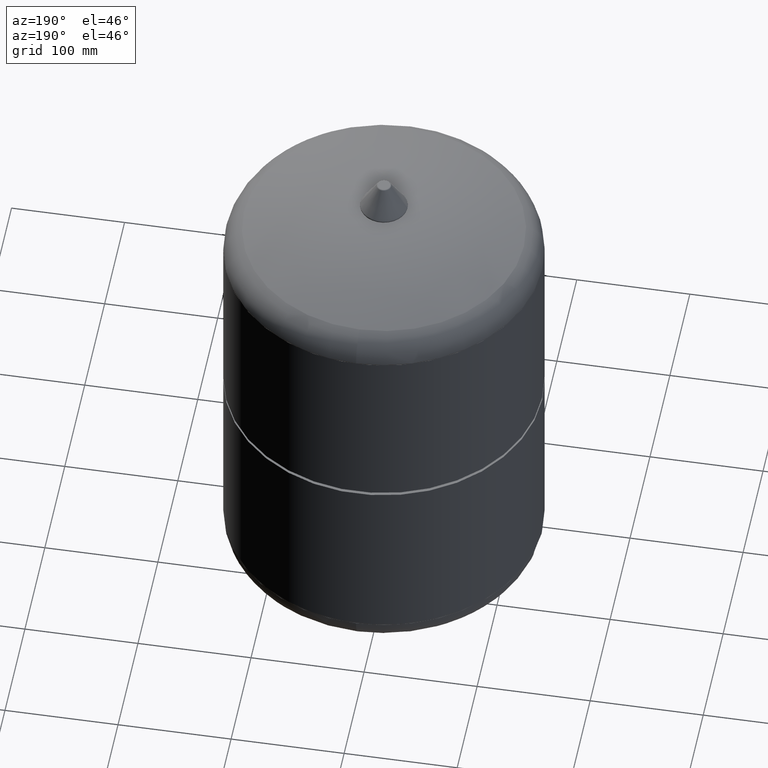
[diagram: clean part render]
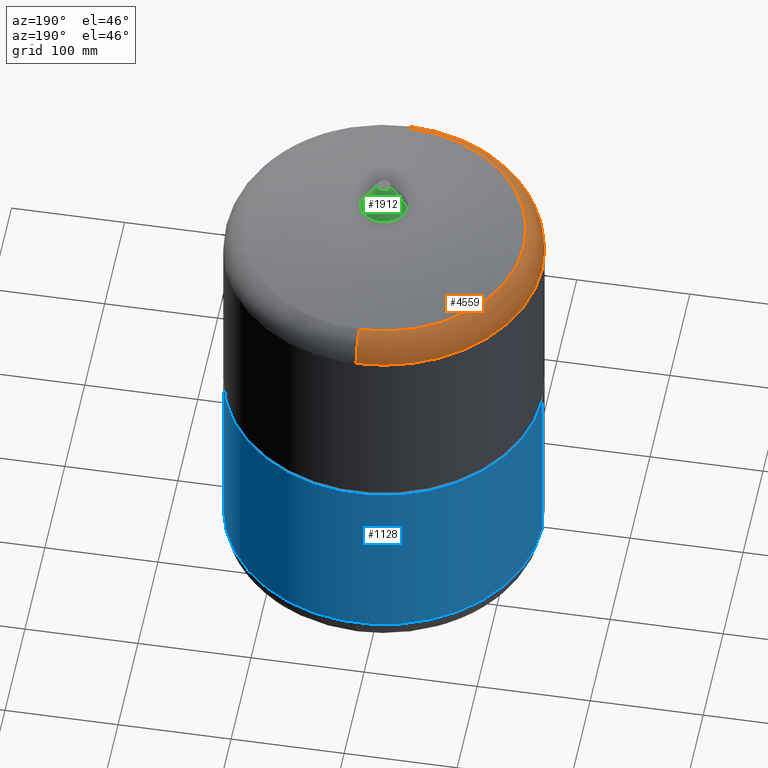
[diagram: same view with three faces highlighted in distinct colors, each labeled with its STEP entity id]
A machine part, auxiliary view with three faces highlighted in distinct colors.
Their STEP definitions:

[orange] entity #4559 — the highlighted toroidal blend (fillet) surface has major radius 111 mm and minor (blend) radius 29 mm.
#4464=CARTESIAN_POINT('',(-139.999999999999970,-7.243841E-017,418.236601813234530));
#4465=VERTEX_POINT('',#4464);
#4489=CARTESIAN_POINT('',(-1.000425E-014,-140.0,418.236601813234470));
#4490=VERTEX_POINT('',#4489);
#4498=CARTESIAN_POINT('',(-4.569998E-017,-7.243841E-017,418.236601813234530));
#4499=DIRECTION('',(0.0,0.0,-1.0));
#4500=DIRECTION('',(-1.0,0.0,0.0));
#4501=AXIS2_PLACEMENT_3D('',#4498,#4499,#4500);
#4502=CIRCLE('',#4501,140.0);
#4503=EDGE_CURVE('',#4490,#4465,#4502,.T.);
#4508=CARTESIAN_POINT('',(7.140239E-015,-7.243841E-017,418.236601813234530));
#4509=DIRECTION('',(1.931514E-016,3.061617E-016,-1.0));
#4510=DIRECTION('',(0.0,1.0,0.0));
#4511=AXIS2_PLACEMENT_3D('',#4508,#4509,#4510);
#4512=TOROIDAL_SURFACE('',#4511,111.000000000000010,29.000000000000004);
#4513=CARTESIAN_POINT('',(7.140239E-015,140.0,418.236601813234590));
#4514=VERTEX_POINT('',#4513);
#4515=CARTESIAN_POINT('',(2.111510E-015,123.773809523809520,444.271766307614710));
#4516=VERTEX_POINT('',#4515);
#4517=CARTESIAN_POINT('',(7.140239E-015,111.000000000000010,418.236601813234590));
#4518=DIRECTION('',(1.0,0.0,0.0));
#4519=DIRECTION('',(0.0,1.0,0.0));
#4520=AXIS2_PLACEMENT_3D('',#4517,#4518,#4519);
#4521=CIRCLE('',#4520,29.000000000000004);
#4522=EDGE_CURVE('',#4514,#4516,#4521,.T.);
#4523=ORIENTED_EDGE('',*,*,#4522,.F.);
#4524=CARTESIAN_POINT('',(-4.569998E-017,-7.243841E-017,418.236601813234530));
#4525=DIRECTION('',(0.0,0.0,-1.0));
#4526=DIRECTION('',(-1.0,0.0,0.0));
#4527=AXIS2_PLACEMENT_3D('',#4524,#4525,#4526);
#4528=CIRCLE('',#4527,140.0);
#4529=EDGE_CURVE('',#4465,#4514,#4528,.T.);
#4530=ORIENTED_EDGE('',*,*,#4529,.F.);
#4531=ORIENTED_EDGE('',*,*,#4503,.F.);
#4532=CARTESIAN_POINT('',(-1.304591E-014,-123.773809523809550,444.271766307614600));
#4533=VERTEX_POINT('',#4532);
#4534=CARTESIAN_POINT('',(-6.452891E-015,-111.000000000000010,418.236601813234470));
#4535=DIRECTION('',(-1.0,0.0,0.0));
#4536=DIRECTION('',(0.0,-1.0,0.0));
#4537=AXIS2_PLACEMENT_3D('',#4534,#4535,#4536);
#4538=CIRCLE('',#4537,29.000000000000004);
#4539=EDGE_CURVE('',#4490,#4533,#4538,.T.);
#4540=ORIENTED_EDGE('',*,*,#4539,.T.);
#4541=CARTESIAN_POINT('',(-123.773809523809550,-8.043409E-015,444.271766307614660));
#4542=VERTEX_POINT('',#4541);
#4543=CARTESIAN_POINT('',(-5.074429E-015,-8.043409E-015,444.271766307614660));
#4544=DIRECTION('',(0.0,0.0,-1.0));
#4545=DIRECTION('',(-1.0,0.0,0.0));
#4546=AXIS2_PLACEMENT_3D('',#4543,#4544,#4545);
#4547=CIRCLE('',#4546,123.773809523809530);
#4548=EDGE_CURVE('',#4533,#4542,#4547,.T.);
#4549=ORIENTED_EDGE('',*,*,#4548,.T.);
#4550=CARTESIAN_POINT('',(-5.074429E-015,-8.043409E-015,444.271766307614660));
#4551=DIRECTION('',(0.0,0.0,-1.0));
#4552=DIRECTION('',(-1.0,0.0,0.0));
#4553=AXIS2_PLACEMENT_3D('',#4550,#4551,#4552);
#4554=CIRCLE('',#4553,123.773809523809530);
#4555=EDGE_CURVE('',#4542,#4516,#4554,.T.);
#4556=ORIENTED_EDGE('',*,*,#4555,.T.);
#4557=EDGE_LOOP('',(#4523,#4530,#4531,#4540,#4549,#4556));
#4558=FACE_OUTER_BOUND('',#4557,.T.);
#4559=ADVANCED_FACE('',(#4558),#4512,.T.);

[blue] entity #1128 — the highlighted cylindrical surface (partial cylindrical patch) has radius 140 mm, axis along (0, 0, 1).
#992=CARTESIAN_POINT('',(139.999999999999970,0.0,255.0));
#993=VERTEX_POINT('',#992);
#994=CARTESIAN_POINT('',(139.999999999999940,0.0,93.0));
#995=VERTEX_POINT('',#994);
#996=CARTESIAN_POINT('',(139.999999999999970,0.0,255.0));
#997=DIRECTION('',(0.0,0.0,-1.0));
#998=VECTOR('',#997,162.0);
#999=LINE('',#996,#998);
#1000=EDGE_CURVE('',#993,#995,#999,.T.);
#1002=CARTESIAN_POINT('',(-139.999999999999940,-1.714449E-014,255.0));
#1003=VERTEX_POINT('',#1002);
#1011=CARTESIAN_POINT('',(-139.999999999999940,1.714449E-014,93.0));
#1012=VERTEX_POINT('',#1011);
#1013=CARTESIAN_POINT('',(-139.999999999999940,-1.714449E-014,255.0));
#1014=DIRECTION('',(0.0,0.0,-1.0));
#1015=VECTOR('',#1014,162.0);
#1016=LINE('',#1013,#1015);
#1017=EDGE_CURVE('',#1003,#1012,#1016,.T.);
#1100=CARTESIAN_POINT('',(0.0,0.0,93.0));
#1101=DIRECTION('',(0.0,0.0,-1.0));
#1102=DIRECTION('',(1.0,0.0,0.0));
#1103=AXIS2_PLACEMENT_3D('',#1100,#1101,#1102);
#1104=CIRCLE('',#1103,139.999999999999940);
#1105=EDGE_CURVE('',#1012,#995,#1104,.T.);
#1111=CARTESIAN_POINT('',(0.0,0.0,173.750000000000000));
#1112=DIRECTION('',(0.0,0.0,1.0));
#1113=DIRECTION('',(1.0,0.0,0.0));
#1114=AXIS2_PLACEMENT_3D('',#1111,#1112,#1113);
#1115=CYLINDRICAL_SURFACE('',#1114,139.999999999999940);
#1116=ORIENTED_EDGE('',*,*,#1000,.T.);
#1117=ORIENTED_EDGE('',*,*,#1105,.F.);
#1118=ORIENTED_EDGE('',*,*,#1017,.F.);
#1119=CARTESIAN_POINT('',(0.0,0.0,255.0));
#1120=DIRECTION('',(0.0,0.0,1.0));
#1121=DIRECTION('',(1.0,0.0,0.0));
#1122=AXIS2_PLACEMENT_3D('',#1119,#1120,#1121);
#1123=CIRCLE('',#1122,139.999999999999970);
#1124=EDGE_CURVE('',#993,#1003,#1123,.T.);
#1125=ORIENTED_EDGE('',*,*,#1124,.F.);
#1126=EDGE_LOOP('',(#1116,#1117,#1118,#1125));
#1127=FACE_OUTER_BOUND('',#1126,.T.);
#1128=ADVANCED_FACE('',(#1127),#1115,.T.);

[green] entity #1912 — the highlighted conical surface has half-angle 30.964 deg.
#1768=CARTESIAN_POINT('',(-20.614128183429354,0.0,474.643119694284450));
#1769=VERTEX_POINT('',#1768);
#1786=CARTESIAN_POINT('',(20.614128183429351,-2.524419E-015,474.643119694284450));
#1787=VERTEX_POINT('',#1786);
#1810=CARTESIAN_POINT('',(-6.364128183429356,0.0,498.393119694284450));
#1811=VERTEX_POINT('',#1810);
#1812=CARTESIAN_POINT('',(-20.614128183429354,0.0,474.643119694284450));
#1813=DIRECTION('',(0.514495755427526,0.0,0.857492925712544));
#1814=VECTOR('',#1813,27.697021500515177);
#1815=LINE('',#1812,#1814);
#1816=EDGE_CURVE('',#1769,#1811,#1815,.T.);
#1819=CARTESIAN_POINT('',(6.364128183429356,-7.793552E-016,498.393119694284390));
#1820=VERTEX_POINT('',#1819);
#1821=CARTESIAN_POINT('',(20.614128183429351,-2.524419E-015,474.643119694284450));
#1822=DIRECTION('',(-0.514495755427527,6.300548E-017,0.857492925712544));
#1823=VECTOR('',#1822,27.697021500515127);
#1824=LINE('',#1821,#1823);
#1825=EDGE_CURVE('',#1787,#1820,#1824,.T.);
#1885=CARTESIAN_POINT('',(-1.773085E-016,0.0,498.393119694284450));
#1886=DIRECTION('',(0.0,0.0,-1.0));
#1887=DIRECTION('',(-1.0,0.0,0.0));
#1888=AXIS2_PLACEMENT_3D('',#1885,#1886,#1887);
#1889=CIRCLE('',#1888,6.364128183429356);
#1890=EDGE_CURVE('',#1811,#1820,#1889,.T.);
#1895=CARTESIAN_POINT('',(-3.646756E-015,0.0,486.518119694284450));
#1896=DIRECTION('',(-2.921640E-016,0.0,-1.0));
#1897=DIRECTION('',(-1.0,0.0,0.0));
#1898=AXIS2_PLACEMENT_3D('',#1895,#1896,#1897);
#1899=CONICAL_SURFACE('',#1898,13.489128183429353,30.963756532073528);
#1900=ORIENTED_EDGE('',*,*,#1816,.T.);
#1901=ORIENTED_EDGE('',*,*,#1890,.T.);
#1902=ORIENTED_EDGE('',*,*,#1825,.F.);
#1903=CARTESIAN_POINT('',(-7.116202E-015,0.0,474.643119694284450));
#1904=DIRECTION('',(0.0,0.0,-1.0));
#1905=DIRECTION('',(-1.0,0.0,0.0));
#1906=AXIS2_PLACEMENT_3D('',#1903,#1904,#1905);
#1907=CIRCLE('',#1906,20.614128183429351);
#1908=EDGE_CURVE('',#1769,#1787,#1907,.T.);
#1909=ORIENTED_EDGE('',*,*,#1908,.F.);
#1910=EDGE_LOOP('',(#1900,#1901,#1902,#1909));
#1911=FACE_OUTER_BOUND('',#1910,.T.);
#1912=ADVANCED_FACE('',(#1911),#1899,.T.);